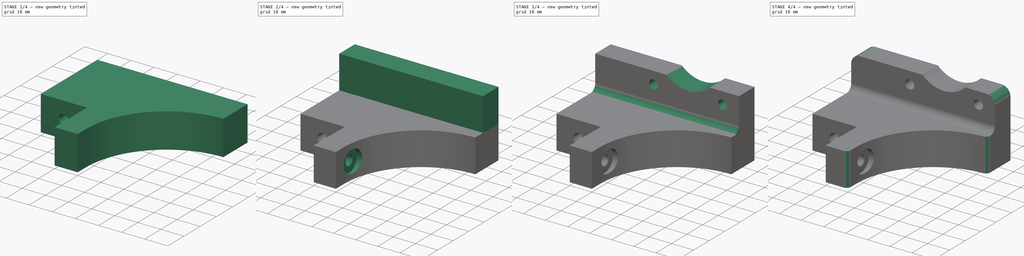
[diagram: build sequence overview — one tinted view per stage of 4, left to right]
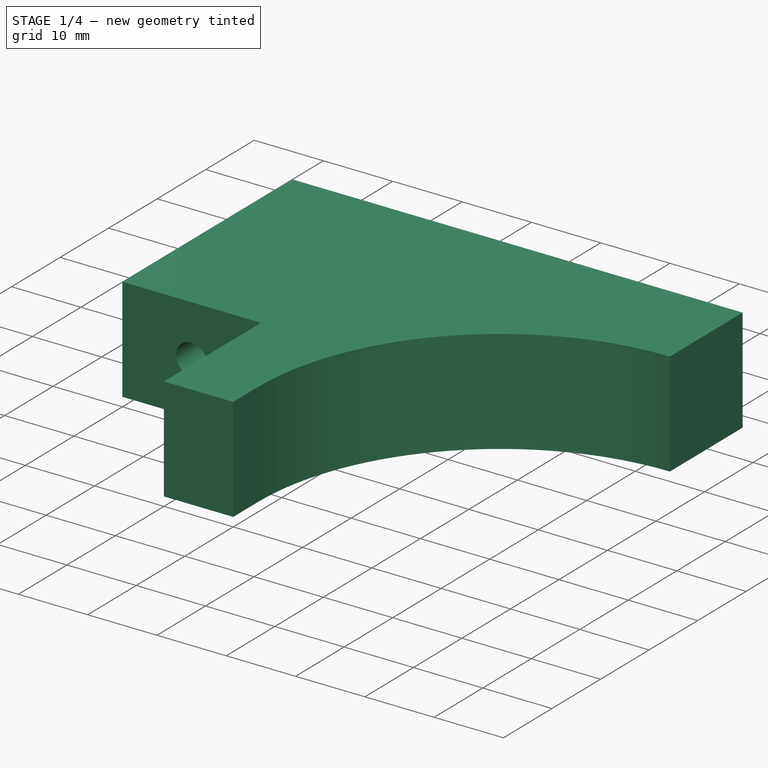
[diagram: stage 1 of 4 — iso view after this stage's code; geometry added in this stage tinted green]
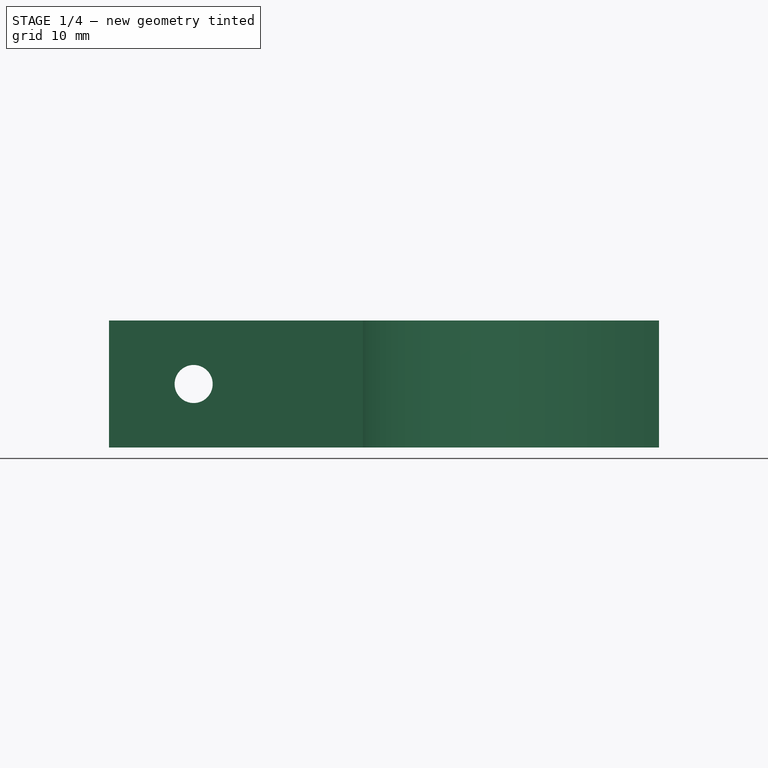
[diagram: stage 1 of 4 — front view after this stage's code; geometry added in this stage tinted green]
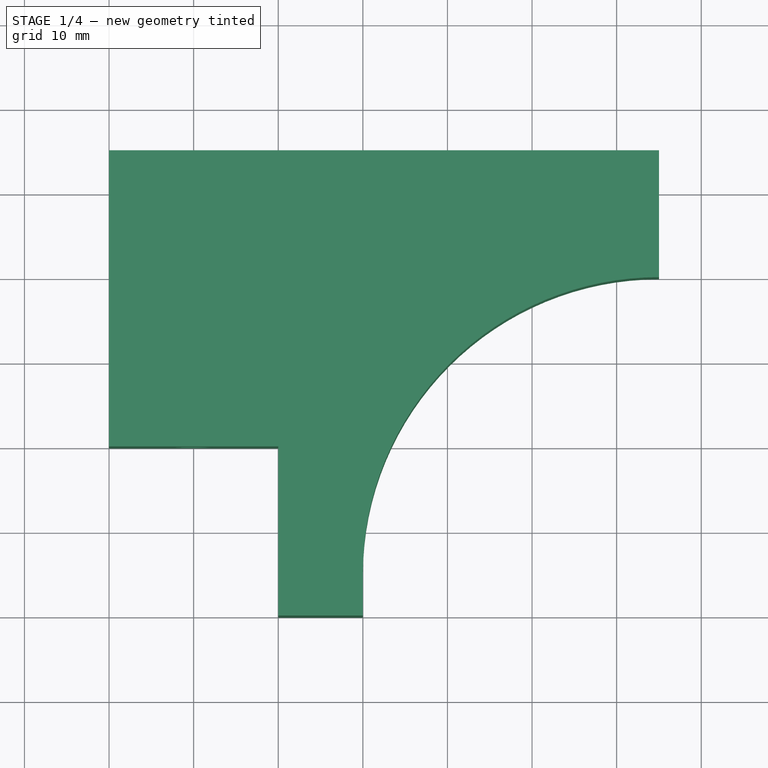
[diagram: stage 1 of 4 — top view after this stage's code; geometry added in this stage tinted green]
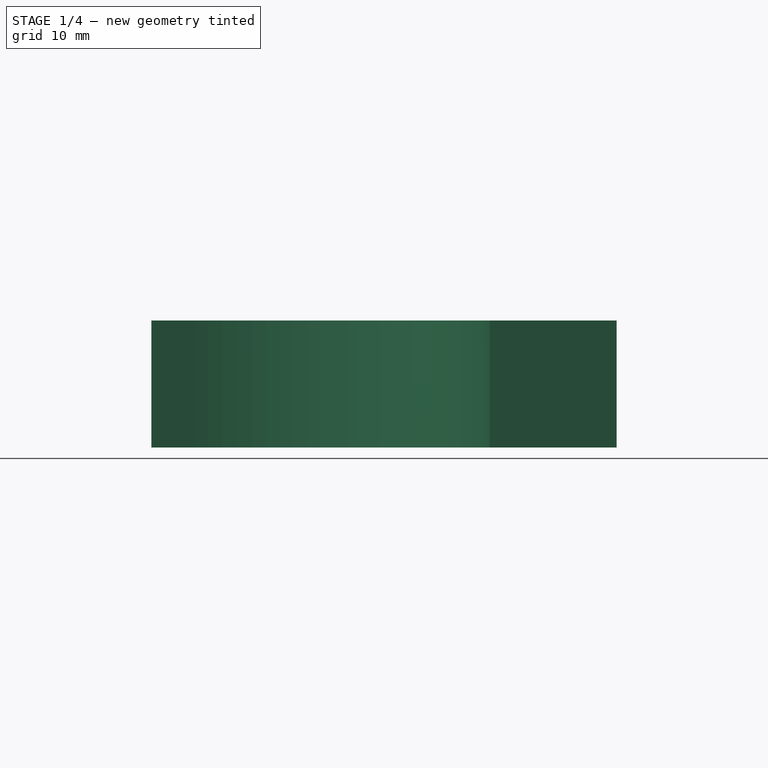
[diagram: stage 1 of 4 — right view after this stage's code; geometry added in this stage tinted green]
FCSTD DOCUMENT  (FreeCAD 0.14R3700 (Git))
Label: Z-motor-mount
License: CC-BY 3.0
LicenseURL: http://creativecommons.org/licenses/by/3.0/
objects: Sketcher::SketchObject×7, PartDesign::Pocket×5, PartDesign::Fillet×3, PartDesign::Pad×2
note: 24 computed .brp shape members not serialized (recipe doc carries the construction recipe); baked Part::Feature solids carry a one-line shape summary decoded from their .brp

FEATURE [Sketcher::SketchObject] Sketch
  sketch-geometry (8):
    g0: LineSegment StartX=45 StartY=15 StartZ=0 EndX=-20 EndY=15 EndZ=0
    g1: LineSegment StartX=-20 StartY=15 StartZ=0 EndX=-20 EndY=-20 EndZ=0
    g2: LineSegment StartX=0 StartY=-40 StartZ=0 EndX=0 EndY=-20 EndZ=0
    g3: LineSegment StartX=0 StartY=-20 StartZ=0 EndX=-20 EndY=-20 EndZ=0
    g4: LineSegment StartX=0 StartY=-40 StartZ=0 EndX=10 EndY=-40 EndZ=0
    g5: LineSegment StartX=45 StartY=-4e-11 StartZ=0 EndX=45 EndY=15 EndZ=0
    g6: ArcOfCircle CenterX=45 CenterY=-35 CenterZ=0 NormalX=0 NormalY=0 NormalZ=1 Radius=35 StartAngle=1.5708 EndAngle=3.14159
    g7: LineSegment StartX=10 StartY=-40 StartZ=0 EndX=10 EndY=-35 EndZ=0
  constraints (25):
    c: Coincident(g0,g1)
    c: Horizontal(g0)
    c: Vertical(g1)
    c: Horizontal(g3)
    c: Vertical(g2)
    c: DistanceX(g2,g1) = -20
    c: Horizontal(g4)
    c: Coincident(g5,g0)
    c: Vertical(g5)
    c: DistanceX(g4) = 10
    c: Coincident(g4,g2)
    c: Coincident(g3,g2)
    c: DistanceY(g-1,g4) = -40
    c: Distance(g2) = 20
    c: PointOnObject(g6,g-1)
    c: Coincident(g3,g1)
    c: Coincident(g7,g4)
    c: Vertical(g7)
    c: Coincident(g7,g6)
    c: Tangent(g7,g6)
    c: Radius(g6) = 35
    c: PointOnObject(g2,g-2)
    c: DistanceY(g2,g0) = 55
    c: Coincident(g6,g5)
    c: DistanceX(g4,g5) = 35
FEATURE [PartDesign::Pad] Pad
  Length = 15
  Length2 = 100
  Sketch = -> Sketch
  Type = 0
FEATURE [Sketcher::SketchObject] Sketch001
  Placement = pos=(0,-20,0) rot=(1,0,0;1.5708rad)
  Support = -> Pad [Face4]
  sketch-geometry (1):
    g0: Circle CenterX=-10 CenterY=7.5 CenterZ=0 NormalX=0 NormalY=0 NormalZ=1 Radius=2.25
  constraints (3):
    c: DistanceX(g-1,g0) = -10
    c: DistanceY(g-1,g0) = 7.5
    c: Radius(g0) = 2.25
FEATURE [PartDesign::Pocket] Pocket
  Length = 5
  Sketch = -> Sketch001
  Type = 1
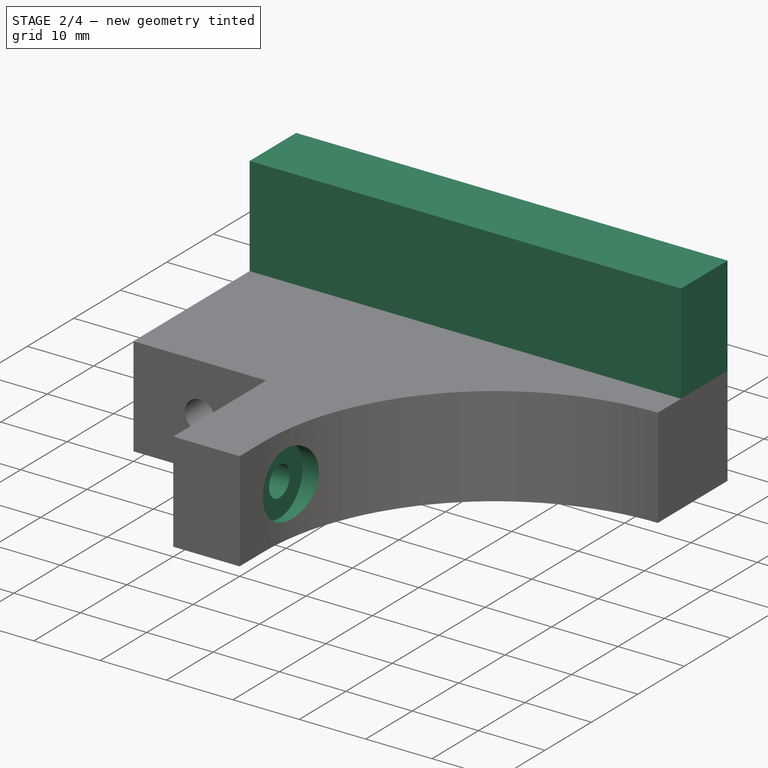
[diagram: stage 2 of 4 — iso view after this stage's code; geometry added in this stage tinted green]
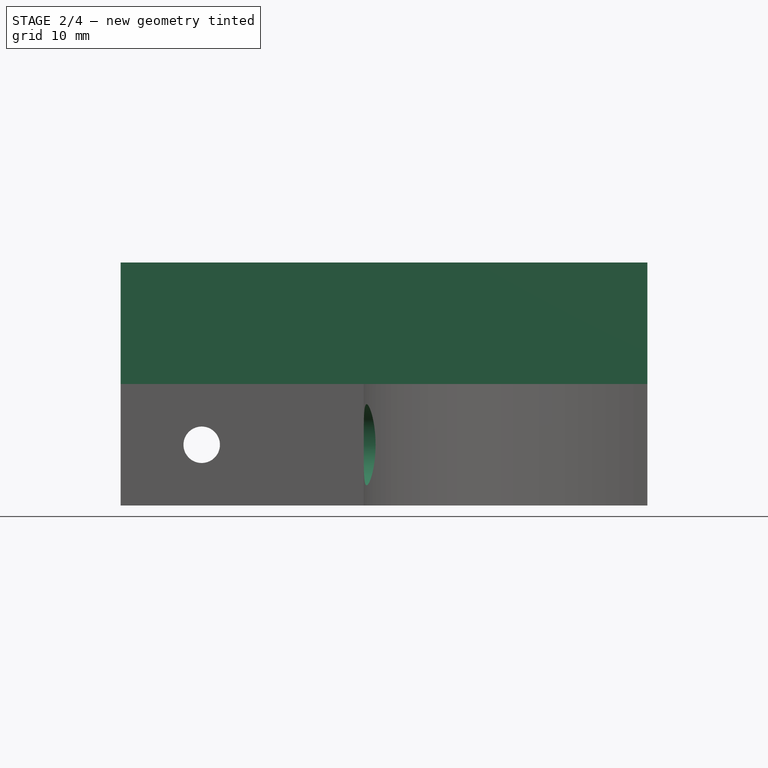
[diagram: stage 2 of 4 — front view after this stage's code; geometry added in this stage tinted green]
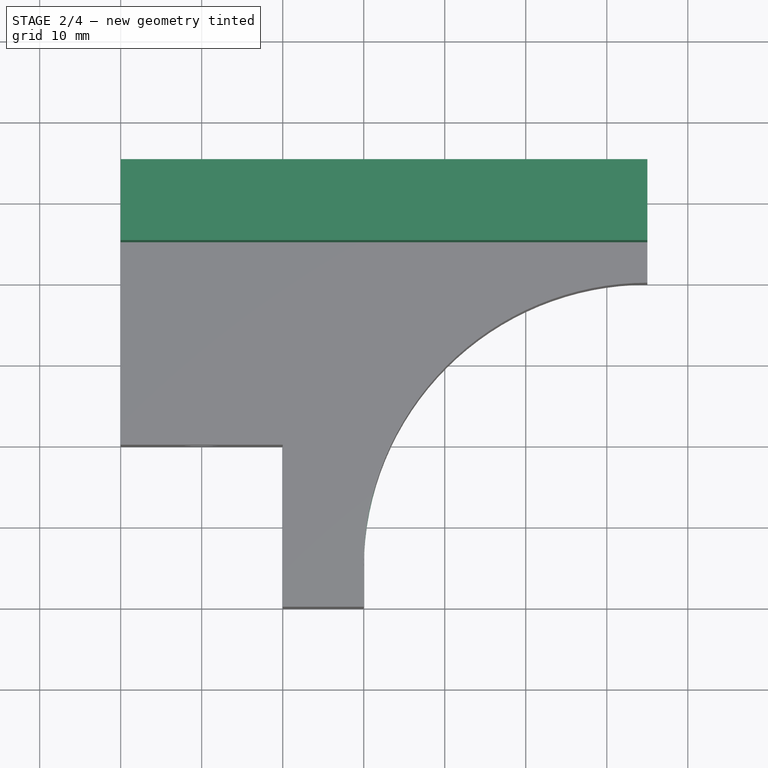
[diagram: stage 2 of 4 — top view after this stage's code; geometry added in this stage tinted green]
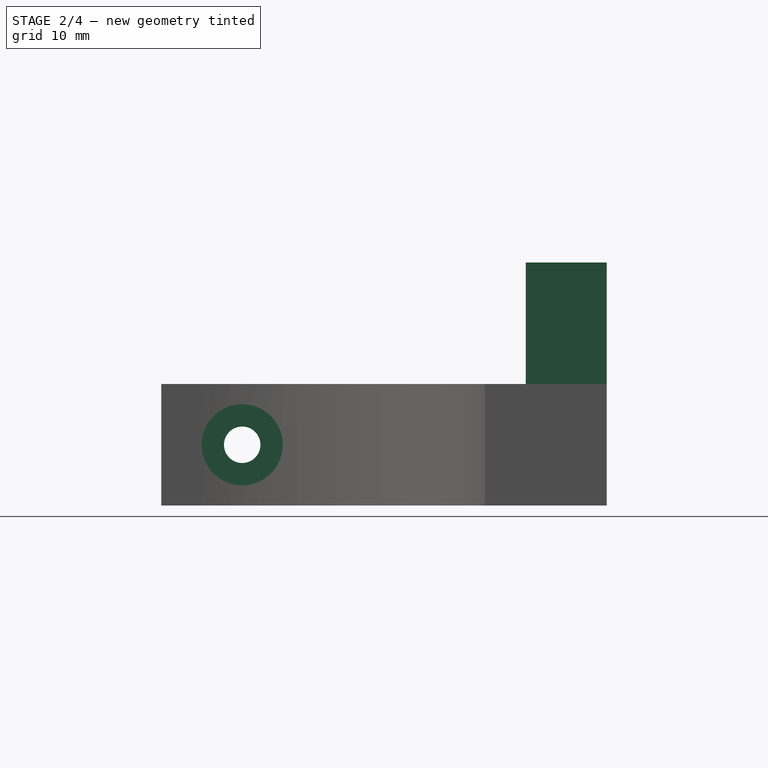
[diagram: stage 2 of 4 — right view after this stage's code; geometry added in this stage tinted green]
FEATURE [Sketcher::SketchObject] Sketch002
  Placement = pos=(0,0,0) rot=(0.57735,-0.57735,-0.57735;2.0944rad)
  Support = -> Pocket [Face10]
  sketch-geometry (1):
    g0: Circle CenterX=30 CenterY=7.5 CenterZ=0 NormalX=0 NormalY=0 NormalZ=1 Radius=2.25
  constraints (3):
    c: Radius(g0) = 2.25
    c: DistanceY(g-1,g0) = 7.5
    c: DistanceX(g-1,g0) = 30
FEATURE [PartDesign::Pocket] Pocket001
  Length = 5
  Sketch = -> Sketch002
  Type = 1
FEATURE [Sketcher::SketchObject] Sketch003
  Placement = pos=(45,0,0) rot=(0.57735,0.57735,0.57735;2.0944rad)
  Support = -> Pocket001 [Face1]
  sketch-geometry (1):
    g0: Circle CenterX=-30 CenterY=7.5 CenterZ=0 NormalX=0 NormalY=0 NormalZ=1 Radius=5
  constraints (3):
    c: DistanceX(g0) = -30
    c: DistanceY(g0) = 7.5
    c: Radius(g0) = 5
FEATURE [PartDesign::Pocket] Pocket002
  Length = 36
  Sketch = -> Sketch003
  Type = 0
FEATURE [Sketcher::SketchObject] Sketch004
  ExternalGeometry = -> [Pocket002]
  Placement = pos=(0,0,15) rot=(0,0,1;0rad)
  Support = -> Pocket002 [Face5]
  sketch-geometry (4):
    g0: LineSegment StartX=-20 StartY=15 StartZ=0 EndX=45 EndY=15 EndZ=0
    g1: LineSegment StartX=45 StartY=15 StartZ=0 EndX=45 EndY=5 EndZ=0
    g2: LineSegment StartX=45 StartY=5 StartZ=0 EndX=-20 EndY=5 EndZ=0
    g3: LineSegment StartX=-20 StartY=5 StartZ=0 EndX=-20 EndY=15 EndZ=0
  constraints (12):
    c: Distance(g1) = 10
    c: Coincident(g1,g2)
    c: Coincident(g0,g1)
    c: Coincident(g0,g3)
    c: Coincident(g0,g-4)
    c: Coincident(g2,g3)
    c: Vertical(g1)
    c: PointOnObject(g1,g-3)
    c: PointOnObject(g2,g-4)
    c: Coincident(g0,g1)
    c: Coincident(g0,g-3)
    c: Horizontal(g2)
FEATURE [PartDesign::Pad] Pad001
  Length = 15
  Length2 = 100
  Sketch = -> Sketch004
  Type = 0
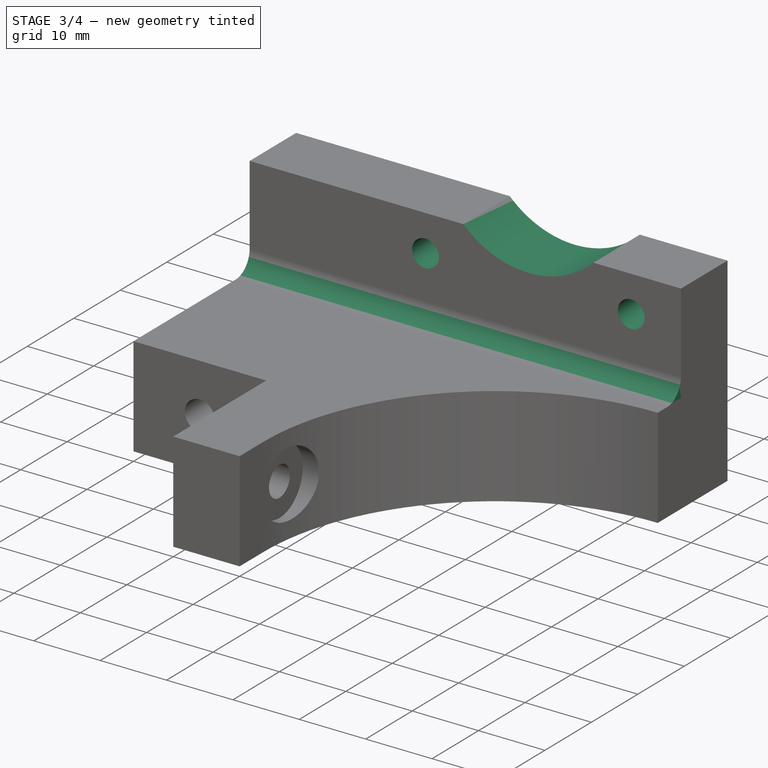
[diagram: stage 3 of 4 — iso view after this stage's code; geometry added in this stage tinted green]
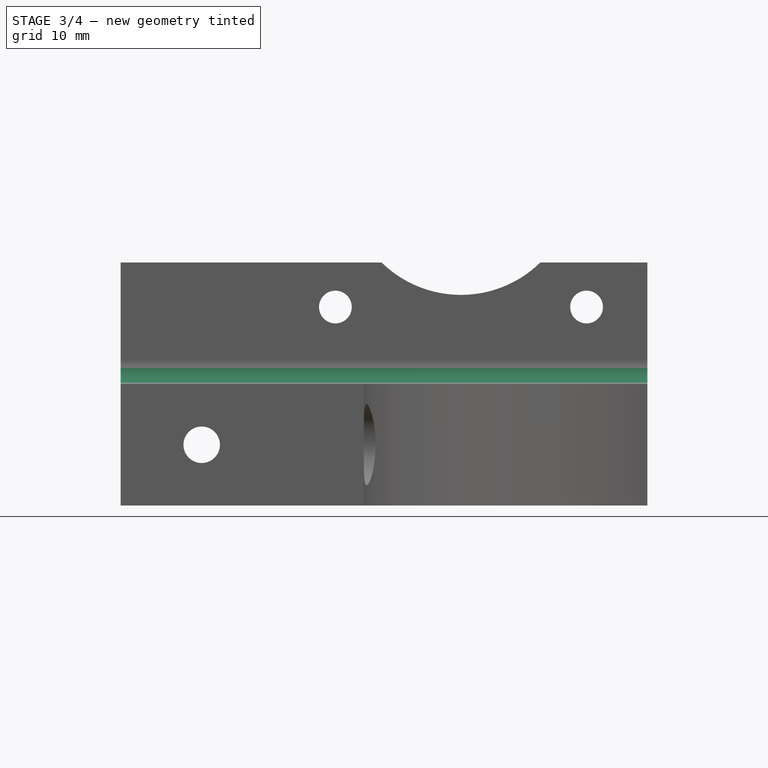
[diagram: stage 3 of 4 — front view after this stage's code; geometry added in this stage tinted green]
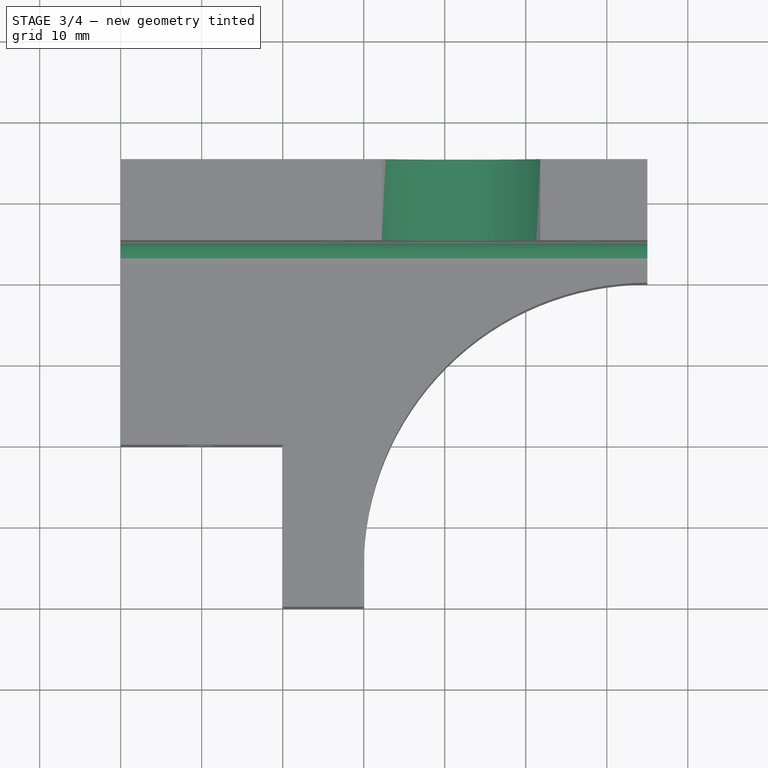
[diagram: stage 3 of 4 — top view after this stage's code; geometry added in this stage tinted green]
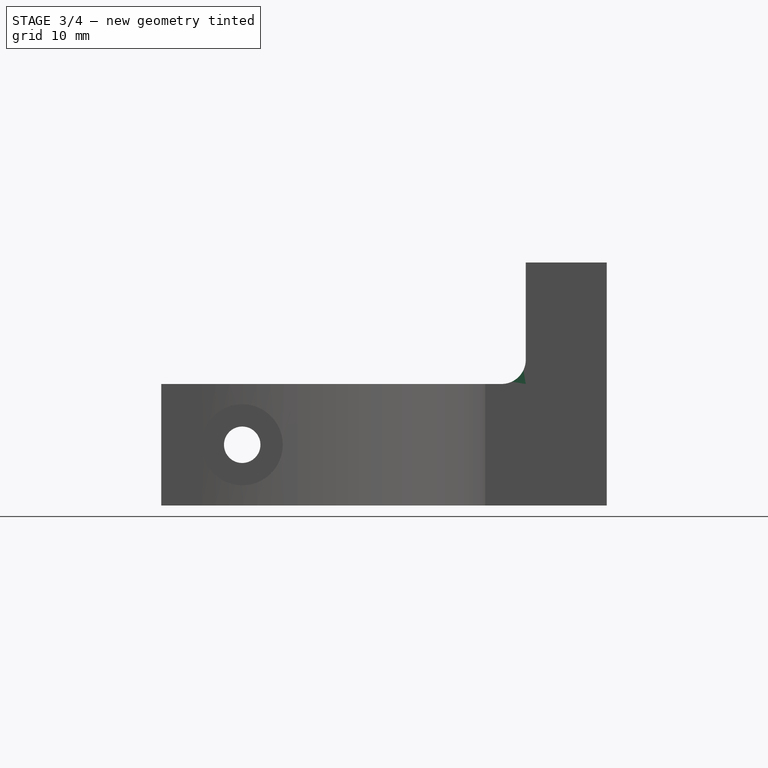
[diagram: stage 3 of 4 — right view after this stage's code; geometry added in this stage tinted green]
FEATURE [Sketcher::SketchObject] Sketch005
  Placement = pos=(0,15,0) rot=(0,0.707107,0.707107;3.14159rad)
  Support = -> Pad001 [Face15]
  sketch-geometry (3):
    g0: Circle CenterX=-37.5 CenterY=24.5 CenterZ=0 NormalX=0 NormalY=0 NormalZ=1 Radius=2.01991
    g1: Circle CenterX=-6.5 CenterY=24.5 CenterZ=0 NormalX=0 NormalY=0 NormalZ=1 Radius=2.01991
    g2: Circle CenterX=-22 CenterY=40 CenterZ=0 NormalX=0 NormalY=0 NormalZ=1 Radius=14
  constraints (9):
    c: Equal(g0,g1)
    c: Radius(g1) = 2.01991
    c: DistanceX(g0,g1) = 31
    c: DistanceY(g1,g0) = 0
    c: DistanceX(g2,g0) = -15.5
    c: DistanceY(g2,g1) = -15.5
    c: Radius(g2) = 14
    c: DistanceX(g2) = -22
    c: DistanceY(g2) = 40
FEATURE [PartDesign::Pocket] Pocket003
  Length = 5
  Sketch = -> Sketch005
  Type = 1
FEATURE [Sketcher::SketchObject] Sketch006
  Placement = pos=(0,15,0) rot=(0,0.707107,0.707107;3.14159rad)
  Support = -> Pocket003 [Face15]
  sketch-geometry (2):
    g0: Circle CenterX=-37.5 CenterY=24.5 CenterZ=0 NormalX=0 NormalY=0 NormalZ=1 Radius=4
    g1: Circle CenterX=-6.5 CenterY=24.5 CenterZ=0 NormalX=0 NormalY=0 NormalZ=1 Radius=4
  constraints (6):
    c: DistanceY(g0,g1) = 0
    c: Equal(g1,g0)
    c: Radius(g1) = 4
    c: DistanceX(g0,g1) = 31
    c: DistanceX(g1) = -6.5
    c: DistanceY(g1) = 24.5
FEATURE [PartDesign::Pocket] Pocket004
  Length = 5
  Sketch = -> Sketch006
  Type = 0
FEATURE [PartDesign::Fillet] Fillet
  Base = -> Pocket004 [Edge16]
  Radius = 3
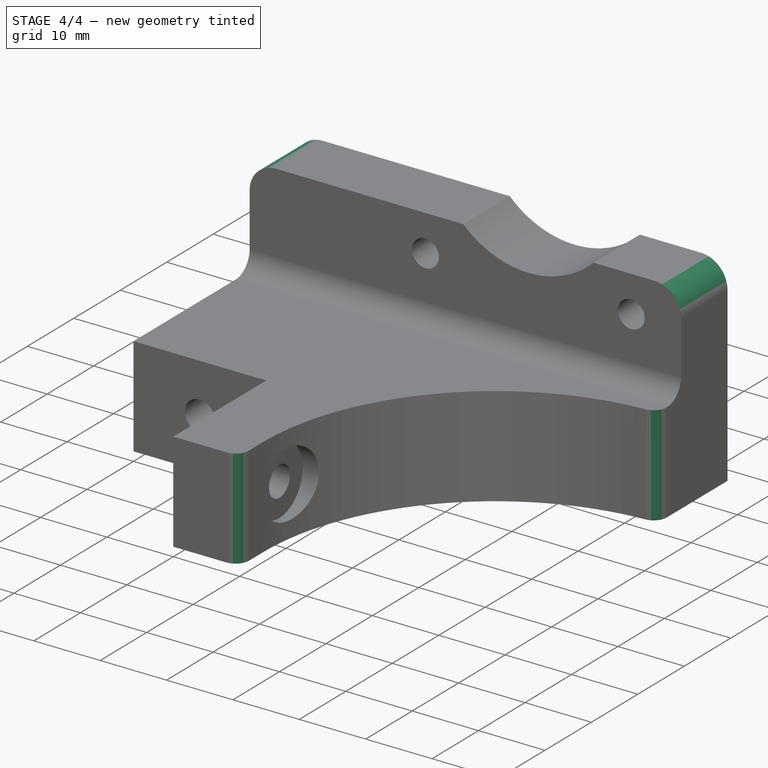
[diagram: stage 4 of 4 — iso view after this stage's code; geometry added in this stage tinted green]
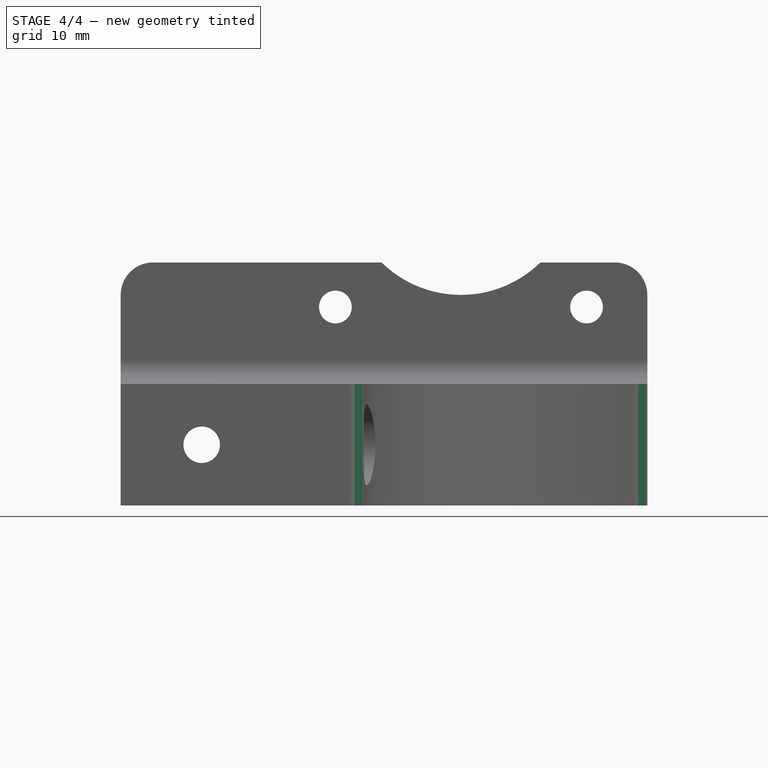
[diagram: stage 4 of 4 — front view after this stage's code; geometry added in this stage tinted green]
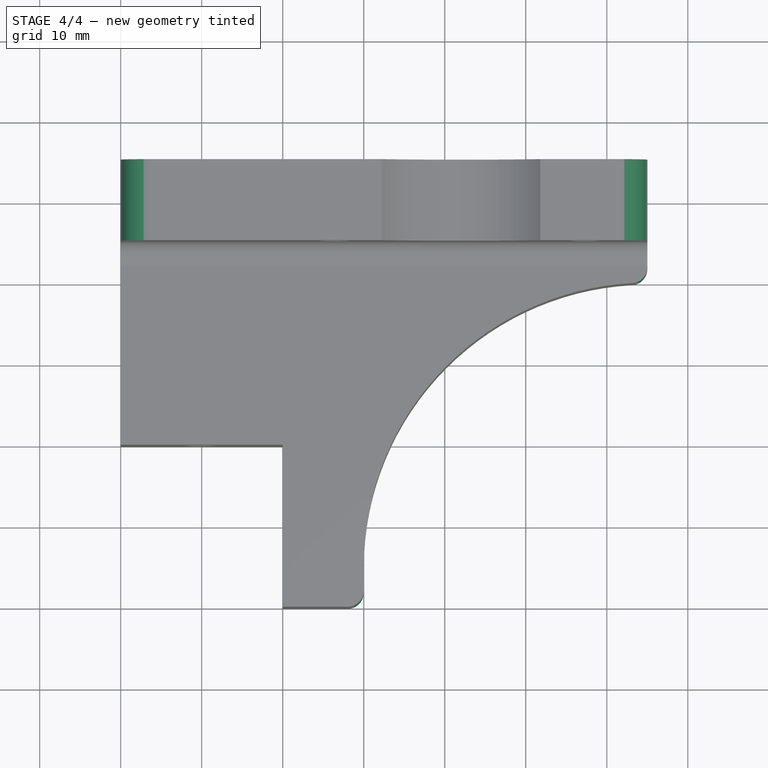
[diagram: stage 4 of 4 — top view after this stage's code; geometry added in this stage tinted green]
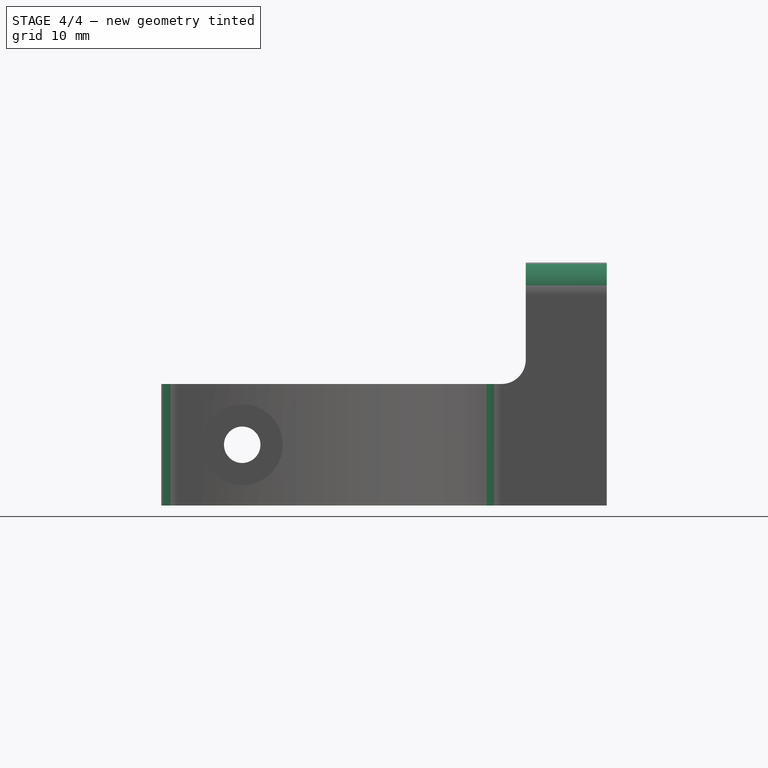
[diagram: stage 4 of 4 — right view after this stage's code; geometry added in this stage tinted green]
FEATURE [PartDesign::Fillet] Fillet001
  Base = -> Fillet [Edge56,Edge16]
  Radius = 4
FEATURE [PartDesign::Fillet] Fillet002
  Base = -> Fillet001 [Edge29,Edge64]
  Radius = 2
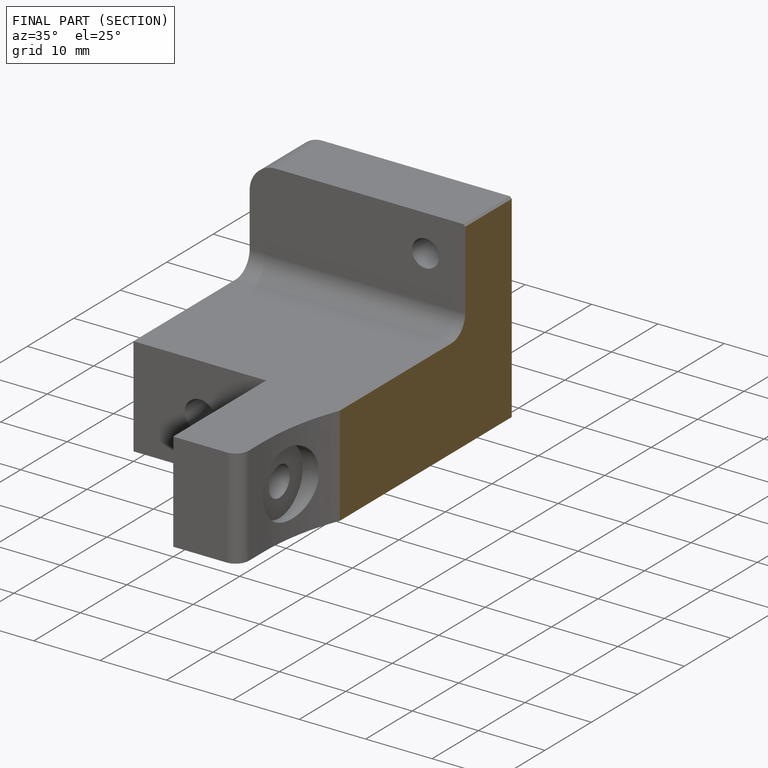
[diagram: finished part — half-section view (interior)]
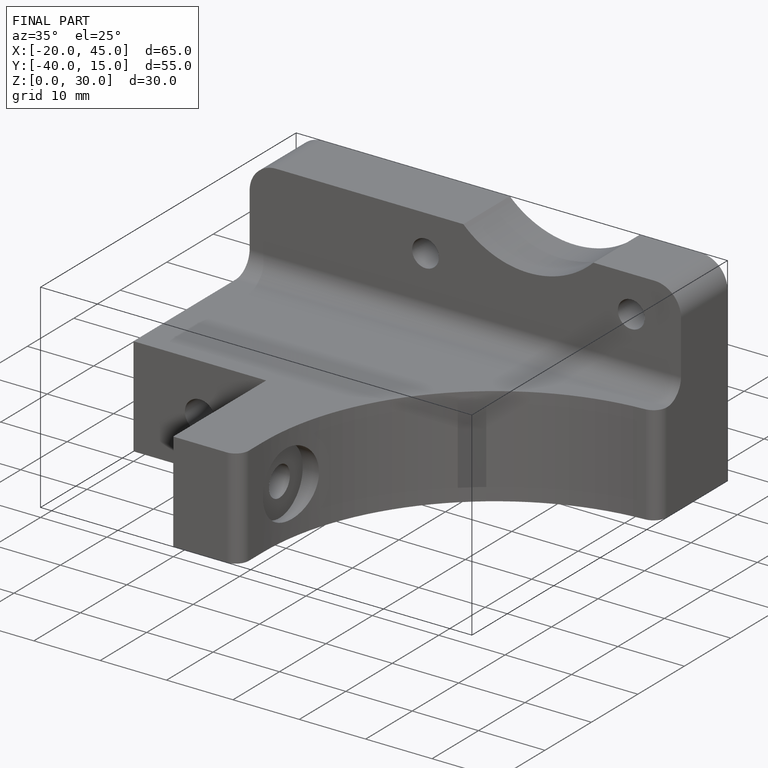
[diagram: finished part — iso view with bounding-box wireframe]
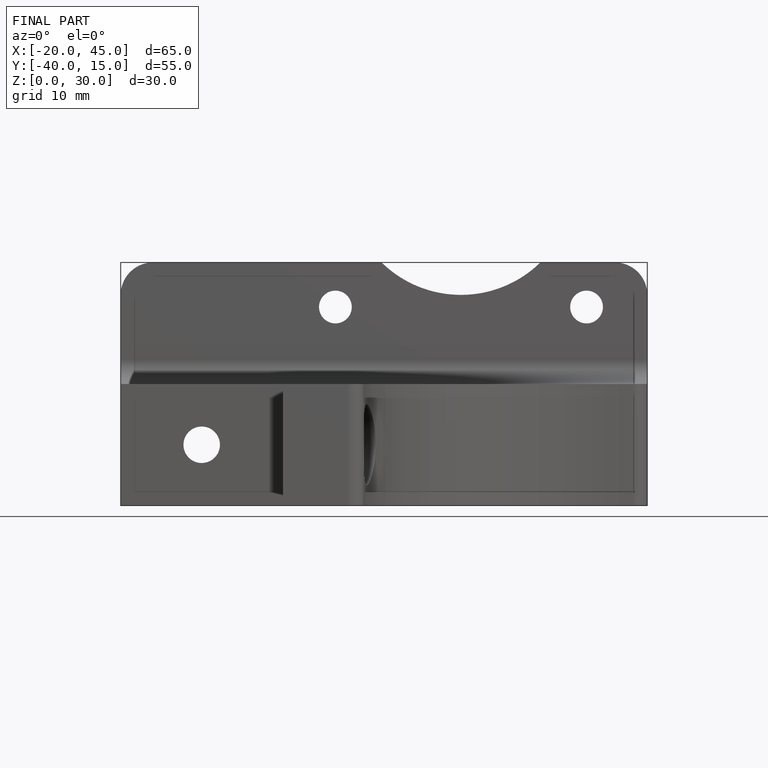
[diagram: finished part — front view with bounding-box wireframe]
